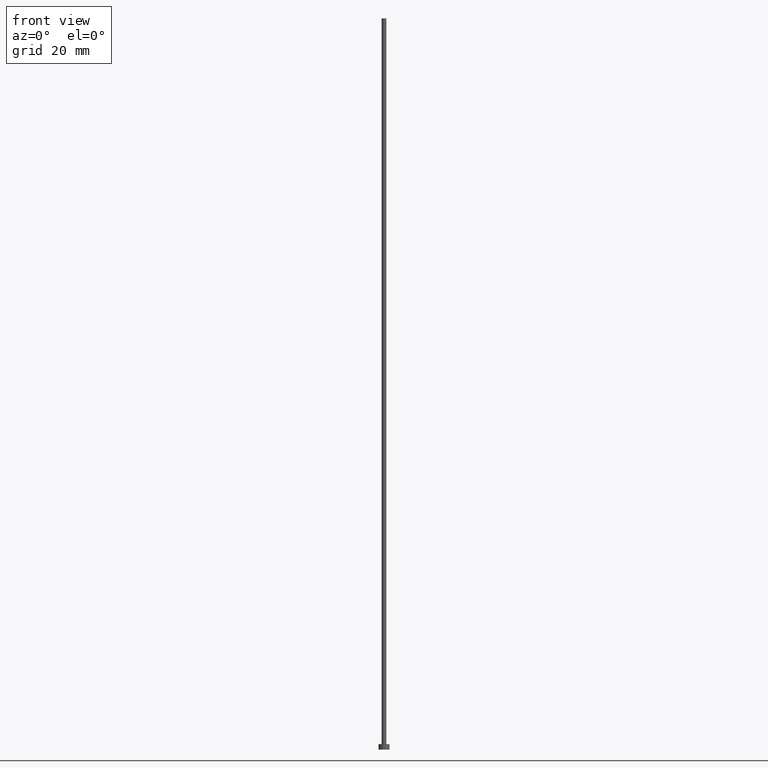
[diagram: clean part render]
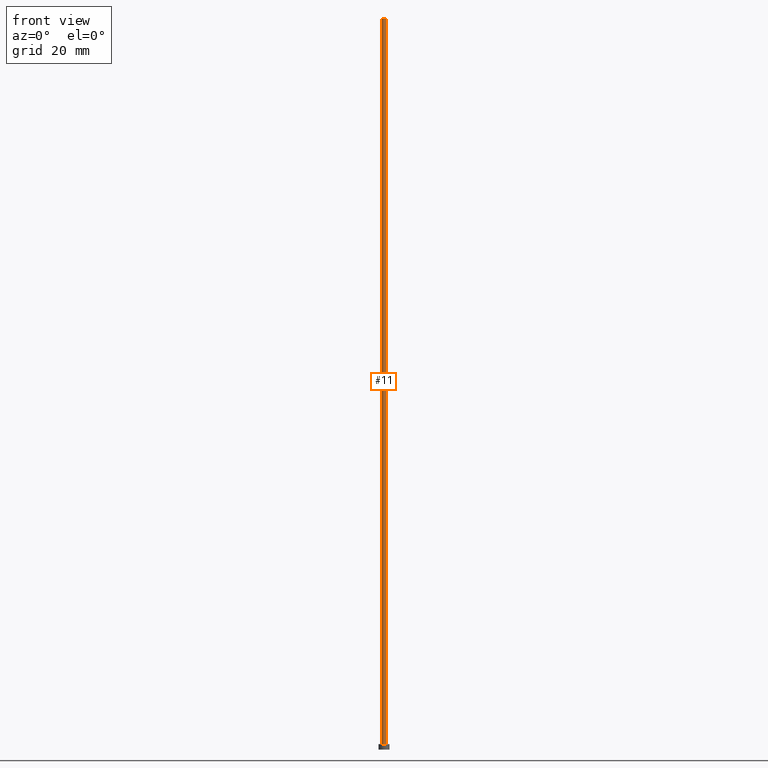
[diagram: same view with one face highlighted and labeled with its STEP entity id]
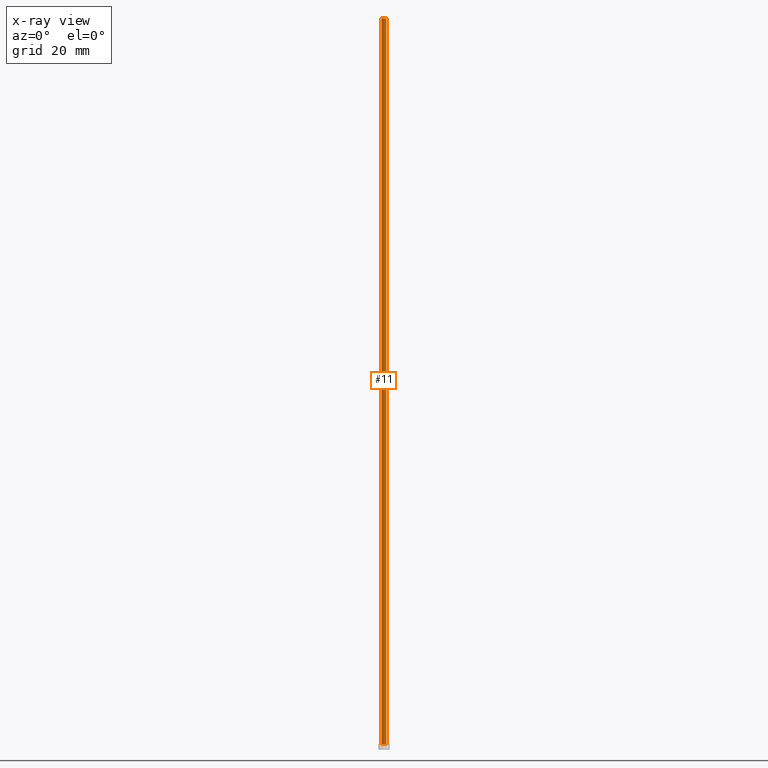
[diagram: x-ray of the same camera — body ghosted, the highlighted face saturated]
A machine part, front view. The second image highlights one B-rep face of the part: STEP entity #11.
The next image is the same camera in x-ray: the body ghosted, the highlighted face saturated — about 0% of this face is hidden behind the body in this view.
In plain terms, the highlighted cylindrical surface (edge-blend (fillet) strip) has radius 0.65 mm, axis along (-0, -0, -1).
Its self-contained STEP definition (entity closure, byte-faithful):
#4 = CARTESIAN_POINT ( 'NONE',  ( 0.6500000000000000222, 7.960204194457795477E-17, 200.0000000000000000 ) ) ;
#5 = VERTEX_POINT ( 'NONE', #142 ) ;
#8 = DIRECTION ( 'NONE',  ( -1.000000000000000000, 0.000000000000000000, 0.000000000000000000 ) ) ;
#11 = ADVANCED_FACE ( 'NONE', ( #128 ), #87, .T. ) ;
#17 = EDGE_LOOP ( 'NONE', ( #247, #224, #220, #204 ) ) ;
#19 = CIRCLE ( 'NONE', #232, 0.6500000000000000222 ) ;
#25 = CARTESIAN_POINT ( 'NONE',  ( 0.000000000000000000, 0.000000000000000000, 200.0000000000000000 ) ) ;
#26 = CARTESIAN_POINT ( 'NONE',  ( -0.6500000000000000222, 0.000000000000000000, 1.500000000000000000 ) ) ;
#27 = VERTEX_POINT ( 'NONE', #161 ) ;
#40 = EDGE_CURVE ( 'NONE', #222, #5, #203, .T. ) ;
#55 = AXIS2_PLACEMENT_3D ( 'NONE', #25, #107, #8 ) ;
#62 = CIRCLE ( 'NONE', #254, 0.6500000000000000222 ) ;
#64 = LINE ( 'NONE', #65, #93 ) ;
#65 = CARTESIAN_POINT ( 'NONE',  ( -0.6500000000000000222, 0.000000000000000000, 200.0000000000000000 ) ) ;
#82 = EDGE_CURVE ( 'NONE', #27, #222, #62, .T. ) ;
#83 = DIRECTION ( 'NONE',  ( 0.000000000000000000, 0.000000000000000000, 1.000000000000000000 ) ) ;
#87 = CYLINDRICAL_SURFACE ( 'NONE', #55, 0.6500000000000000222 ) ;
#93 = VECTOR ( 'NONE', #120, 1000.000000000000000 ) ;
#107 = DIRECTION ( 'NONE',  ( -0.000000000000000000, -0.000000000000000000, -1.000000000000000000 ) ) ;
#120 = DIRECTION ( 'NONE',  ( -0.000000000000000000, -0.000000000000000000, -1.000000000000000000 ) ) ;
#128 = FACE_OUTER_BOUND ( 'NONE', #17, .T. ) ;
#134 = VECTOR ( 'NONE', #174, 1000.000000000000000 ) ;
#142 = CARTESIAN_POINT ( 'NONE',  ( 0.6500000000000000222, 7.960204194457795477E-17, 1.500000000000000000 ) ) ;
#161 = CARTESIAN_POINT ( 'NONE',  ( -0.6500000000000000222, 0.000000000000000000, 200.0000000000000000 ) ) ;
#162 = CARTESIAN_POINT ( 'NONE',  ( 0.6500000000000000222, 7.960204194457795477E-17, 200.0000000000000000 ) ) ;
#173 = DIRECTION ( 'NONE',  ( 0.000000000000000000, 0.000000000000000000, 1.000000000000000000 ) ) ;
#174 = DIRECTION ( 'NONE',  ( -0.000000000000000000, -0.000000000000000000, -1.000000000000000000 ) ) ;
#176 = DIRECTION ( 'NONE',  ( 1.000000000000000000, 0.000000000000000000, 0.000000000000000000 ) ) ;
#188 = DIRECTION ( 'NONE',  ( 1.000000000000000000, 0.000000000000000000, 0.000000000000000000 ) ) ;
#203 = LINE ( 'NONE', #162, #134 ) ;
#204 = ORIENTED_EDGE ( 'NONE', *, *, #243, .T. ) ;
#220 = ORIENTED_EDGE ( 'NONE', *, *, #227, .T. ) ;
#222 = VERTEX_POINT ( 'NONE', #4 ) ;
#224 = ORIENTED_EDGE ( 'NONE', *, *, #82, .F. ) ;
#225 = VERTEX_POINT ( 'NONE', #26 ) ;
#227 = EDGE_CURVE ( 'NONE', #27, #225, #64, .T. ) ;
#232 = AXIS2_PLACEMENT_3D ( 'NONE', #241, #83, #176 ) ;
#235 = CARTESIAN_POINT ( 'NONE',  ( 0.000000000000000000, 0.000000000000000000, 200.0000000000000000 ) ) ;
#241 = CARTESIAN_POINT ( 'NONE',  ( 0.000000000000000000, 0.000000000000000000, 1.500000000000000000 ) ) ;
#243 = EDGE_CURVE ( 'NONE', #225, #5, #19, .T. ) ;
#247 = ORIENTED_EDGE ( 'NONE', *, *, #40, .F. ) ;
#254 = AXIS2_PLACEMENT_3D ( 'NONE', #235, #173, #188 ) ;